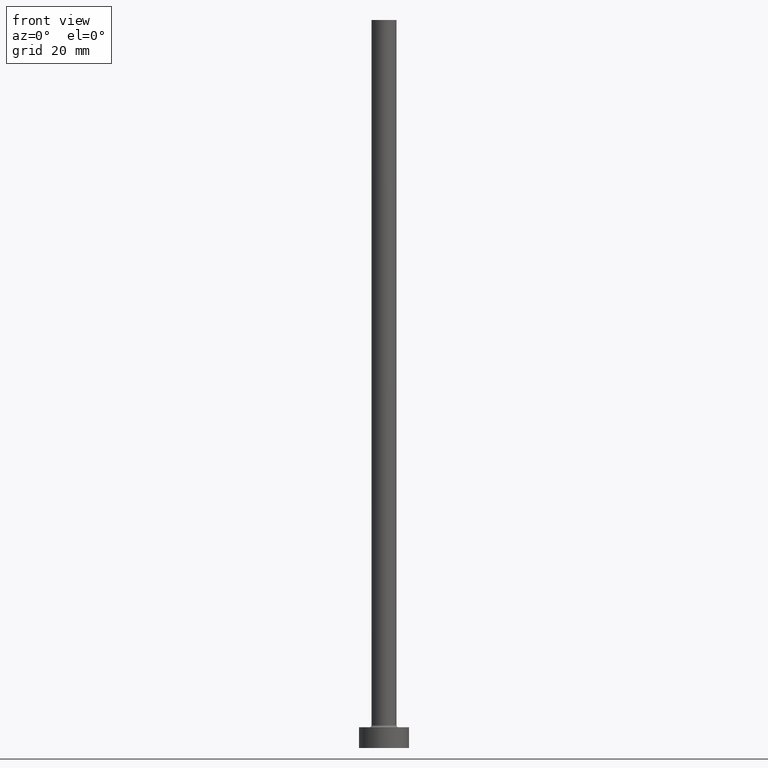
[diagram: clean part render]
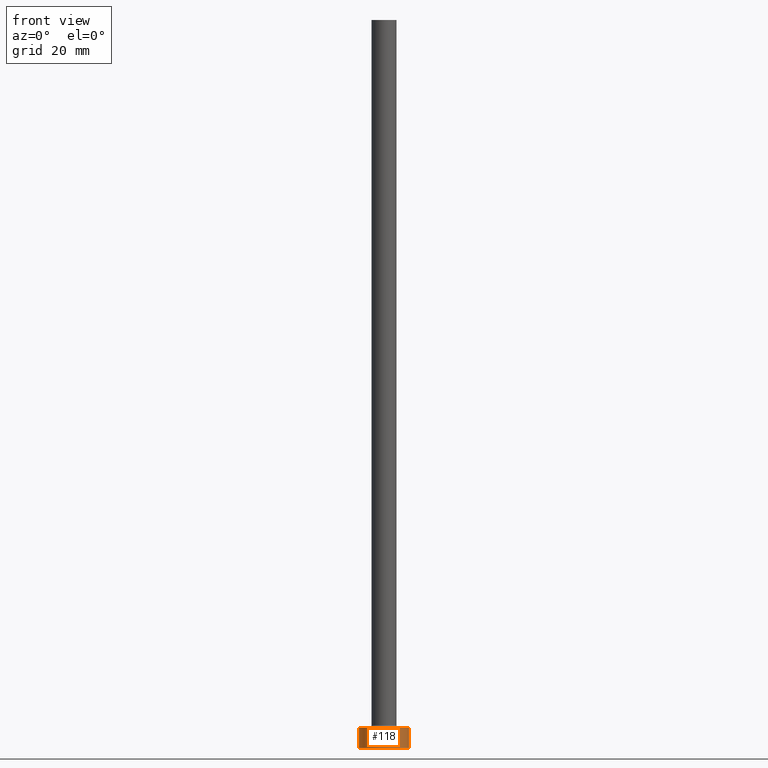
[diagram: same view with one face highlighted and labeled with its STEP entity id]
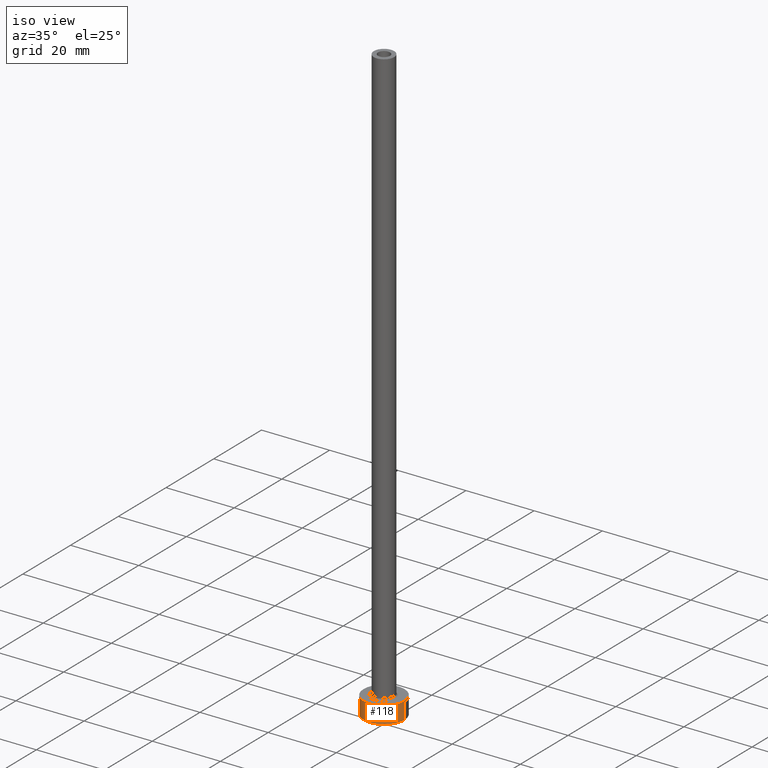
[diagram: same view with one face highlighted and labeled with its STEP entity id]
A machine part, front view. The second image highlights one B-rep face of the part: STEP entity #118.
A second angle (iso view) of the same face is appended — the face is thin or edge-on in the first view.
In plain terms, the highlighted cylindrical surface (edge-blend (fillet) strip) has radius 6 mm, axis along (-0, -0, -1).
Its self-contained STEP definition (entity closure, byte-faithful):
#14 = LINE ( 'NONE', #246, #147 ) ;
#21 = EDGE_CURVE ( 'NONE', #342, #180, #291, .T. ) ;
#25 = DIRECTION ( 'NONE',  ( 1.000000000000000000, 0.000000000000000000, 0.000000000000000000 ) ) ;
#33 = VERTEX_POINT ( 'NONE', #38 ) ;
#38 = CARTESIAN_POINT ( 'NONE',  ( -6.000000000000000888, 0.000000000000000000, 0.000000000000000000 ) ) ;
#62 = CARTESIAN_POINT ( 'NONE',  ( -6.000000000000000888, 0.000000000000000000, 5.000000000000000000 ) ) ;
#68 = DIRECTION ( 'NONE',  ( 1.000000000000000000, 0.000000000000000000, 0.000000000000000000 ) ) ;
#105 = AXIS2_PLACEMENT_3D ( 'NONE', #183, #404, #25 ) ;
#118 = ADVANCED_FACE ( 'NONE', ( #268 ), #186, .T. ) ;
#124 = CARTESIAN_POINT ( 'NONE',  ( 0.000000000000000000, 0.000000000000000000, 5.000000000000000000 ) ) ;
#136 = EDGE_CURVE ( 'NONE', #180, #159, #14, .T. ) ;
#147 = VECTOR ( 'NONE', #206, 1000.000000000000000 ) ;
#159 = VERTEX_POINT ( 'NONE', #292 ) ;
#180 = VERTEX_POINT ( 'NONE', #272 ) ;
#182 = EDGE_CURVE ( 'NONE', #342, #33, #236, .T. ) ;
#183 = CARTESIAN_POINT ( 'NONE',  ( 0.000000000000000000, 0.000000000000000000, 5.000000000000000000 ) ) ;
#186 = CYLINDRICAL_SURFACE ( 'NONE', #232, 6.000000000000000888 ) ;
#206 = DIRECTION ( 'NONE',  ( -0.000000000000000000, -0.000000000000000000, -1.000000000000000000 ) ) ;
#219 = ORIENTED_EDGE ( 'NONE', *, *, #408, .T. ) ;
#232 = AXIS2_PLACEMENT_3D ( 'NONE', #124, #255, #422 ) ;
#234 = DIRECTION ( 'NONE',  ( 0.000000000000000000, 0.000000000000000000, 1.000000000000000000 ) ) ;
#236 = LINE ( 'NONE', #245, #244 ) ;
#244 = VECTOR ( 'NONE', #398, 1000.000000000000000 ) ;
#245 = CARTESIAN_POINT ( 'NONE',  ( -6.000000000000000888, 0.000000000000000000, 5.000000000000000000 ) ) ;
#246 = CARTESIAN_POINT ( 'NONE',  ( 6.000000000000000888, 7.347880794884120722E-16, 5.000000000000000000 ) ) ;
#251 = CIRCLE ( 'NONE', #406, 6.000000000000000888 ) ;
#255 = DIRECTION ( 'NONE',  ( -0.000000000000000000, -0.000000000000000000, -1.000000000000000000 ) ) ;
#268 = FACE_OUTER_BOUND ( 'NONE', #307, .T. ) ;
#272 = CARTESIAN_POINT ( 'NONE',  ( 6.000000000000000888, 7.347880794884120722E-16, 5.000000000000000000 ) ) ;
#291 = CIRCLE ( 'NONE', #105, 6.000000000000000888 ) ;
#292 = CARTESIAN_POINT ( 'NONE',  ( 6.000000000000000888, 7.347880794884120722E-16, 0.000000000000000000 ) ) ;
#295 = ORIENTED_EDGE ( 'NONE', *, *, #21, .F. ) ;
#307 = EDGE_LOOP ( 'NONE', ( #358, #295, #386, #219 ) ) ;
#342 = VERTEX_POINT ( 'NONE', #62 ) ;
#358 = ORIENTED_EDGE ( 'NONE', *, *, #136, .F. ) ;
#386 = ORIENTED_EDGE ( 'NONE', *, *, #182, .T. ) ;
#398 = DIRECTION ( 'NONE',  ( -0.000000000000000000, -0.000000000000000000, -1.000000000000000000 ) ) ;
#404 = DIRECTION ( 'NONE',  ( 0.000000000000000000, 0.000000000000000000, 1.000000000000000000 ) ) ;
#406 = AXIS2_PLACEMENT_3D ( 'NONE', #419, #234, #68 ) ;
#408 = EDGE_CURVE ( 'NONE', #33, #159, #251, .T. ) ;
#419 = CARTESIAN_POINT ( 'NONE',  ( 0.000000000000000000, 0.000000000000000000, 0.000000000000000000 ) ) ;
#422 = DIRECTION ( 'NONE',  ( -1.000000000000000000, 0.000000000000000000, 0.000000000000000000 ) ) ;